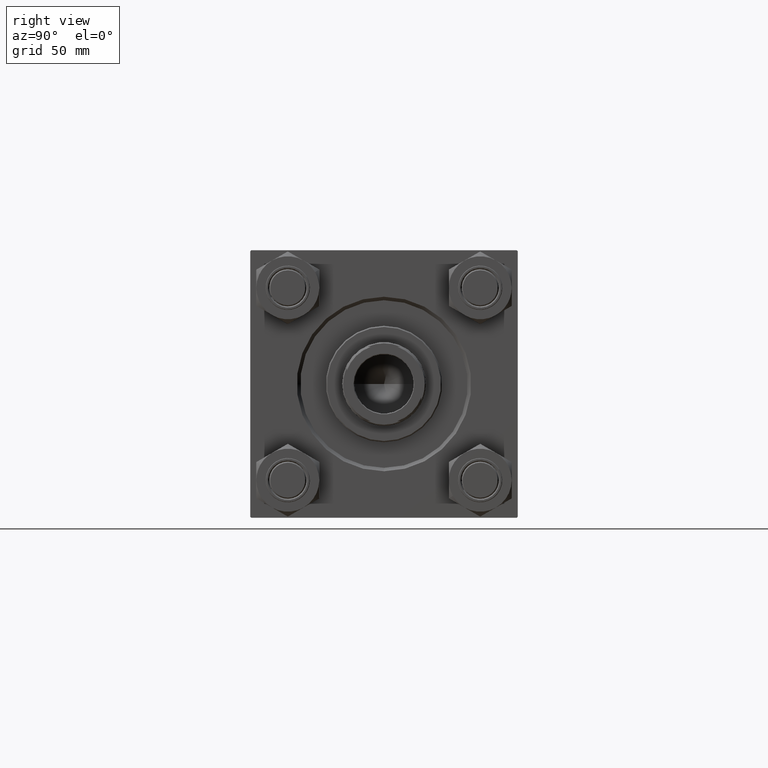
[diagram: clean part render]
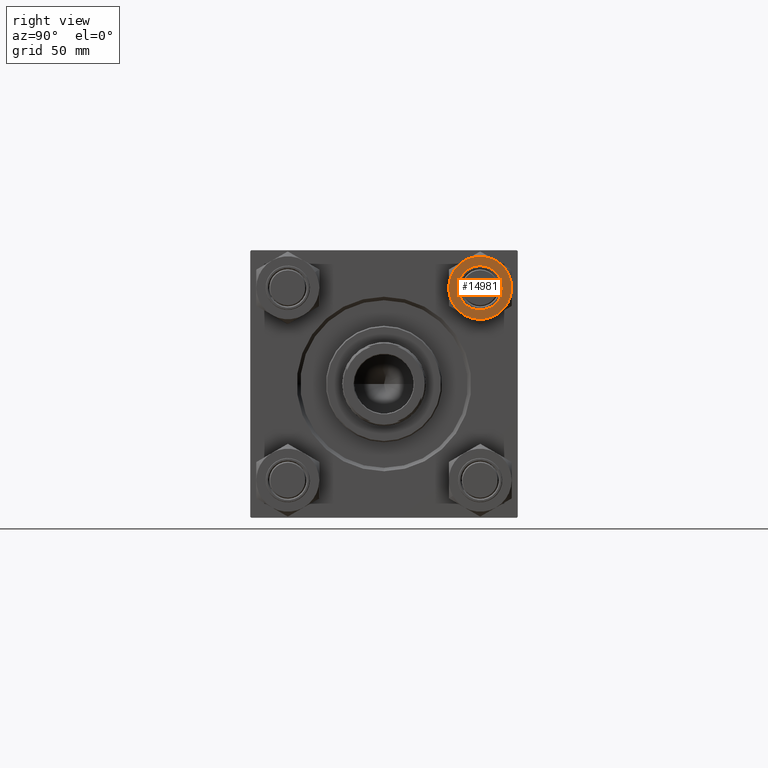
[diagram: same view with one face highlighted and labeled with its STEP entity id]
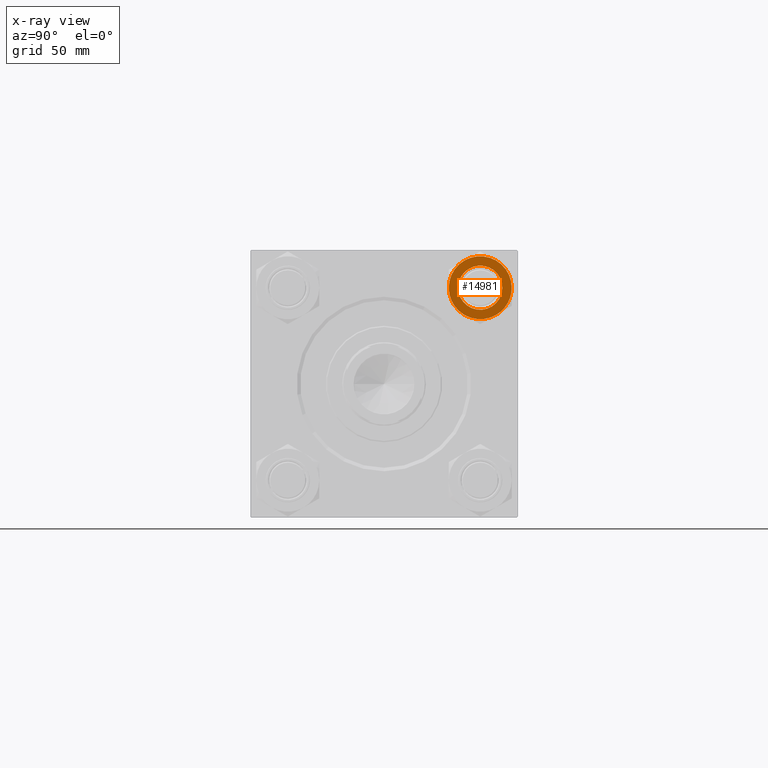
[diagram: x-ray of the same camera — body ghosted, the highlighted face saturated]
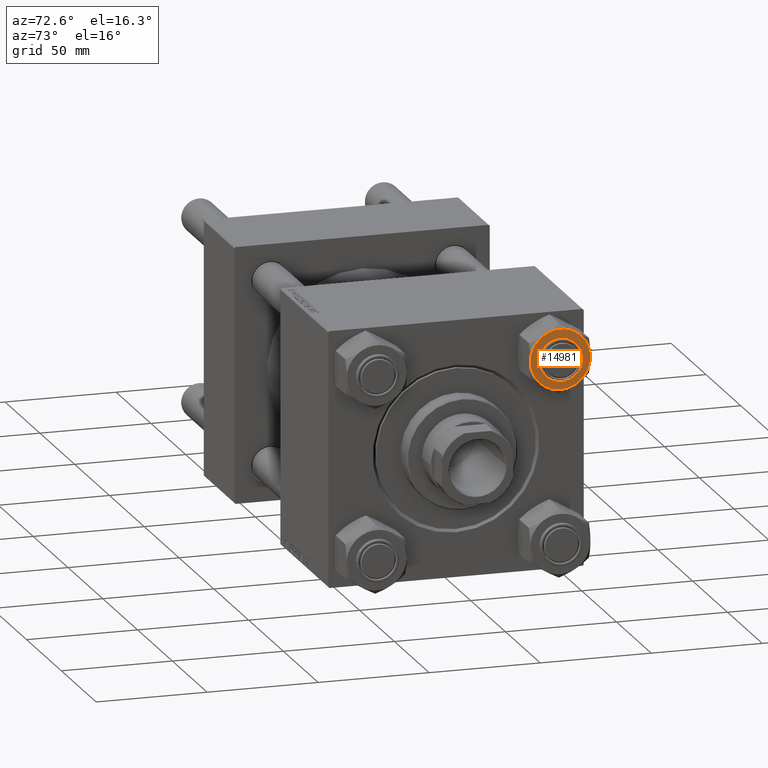
[diagram: same view with one face highlighted and labeled with its STEP entity id]
A machine part, right view. The second image highlights one B-rep face of the part: STEP entity #14981.
The next image is the same camera in x-ray: the body ghosted, the highlighted face saturated — about 0% of this face is hidden behind the body in this view.
A second angle (auxiliary view) of the same face is appended — the face is thin or edge-on in the first view.
In plain terms, the highlighted planar face has unit normal (-1, 0, 0).
Its self-contained STEP definition (entity closure, byte-faithful):
#732 = DIRECTION ( 'NONE',  ( -1.000000000000000000, 0.000000000000000000, 0.000000000000000000 ) ) ;
#771 = VERTEX_POINT ( 'NONE', #5995 ) ;
#1238 = CARTESIAN_POINT ( 'NONE',  ( 0.000000000000000000, 0.000000000000000000, 0.000000000000000000 ) ) ;
#2464 = DIRECTION ( 'NONE',  ( 0.000000000000000000, -0.000000000000000000, -1.000000000000000000 ) ) ;
#2988 = AXIS2_PLACEMENT_3D ( 'NONE', #39169, #7678, #3624 ) ;
#3624 = DIRECTION ( 'NONE',  ( -1.000000000000000000, 0.000000000000000000, 0.000000000000000000 ) ) ;
#3795 = AXIS2_PLACEMENT_3D ( 'NONE', #8138, #19829, #27457 ) ;
#4091 = DIRECTION ( 'NONE',  ( 0.000000000000000000, -0.000000000000000000, -1.000000000000000000 ) ) ;
#4857 = AXIS2_PLACEMENT_3D ( 'NONE', #46231, #31256, #19339 ) ;
#5543 = DIRECTION ( 'NONE',  ( 0.000000000000000000, 0.000000000000000000, 1.000000000000000000 ) ) ;
#5995 = CARTESIAN_POINT ( 'NONE',  ( -9.500000000000000000, 0.000000000000000000, 0.000000000000000000 ) ) ;
#6263 = ORIENTED_EDGE ( 'NONE', *, *, #43164, .F. ) ;
#6464 = EDGE_CURVE ( 'NONE', #44191, #8350, #13794, .T. ) ;
#7123 = DIRECTION ( 'NONE',  ( -1.000000000000000000, 0.000000000000000000, -0.000000000000000000 ) ) ;
#7295 = AXIS2_PLACEMENT_3D ( 'NONE', #21804, #5543, #47963 ) ;
#7463 = CIRCLE ( 'NONE', #46396, 13.52731680711293549 ) ;
#7678 = DIRECTION ( 'NONE',  ( 0.000000000000000000, -0.000000000000000000, -1.000000000000000000 ) ) ;
#8105 = CIRCLE ( 'NONE', #7295, 9.500000000000000000 ) ;
#8138 = CARTESIAN_POINT ( 'NONE',  ( 0.000000000000000000, 0.000000000000000000, 0.000000000000000000 ) ) ;
#8350 = VERTEX_POINT ( 'NONE', #31609 ) ;
#8425 = ORIENTED_EDGE ( 'NONE', *, *, #24257, .F. ) ;
#9885 = CARTESIAN_POINT ( 'NONE',  ( 11.71499999999999808, 6.763658403556471299, 0.000000000000000000 ) ) ;
#9921 = ORIENTED_EDGE ( 'NONE', *, *, #11841, .F. ) ;
#10248 = CIRCLE ( 'NONE', #3795, 9.500000000000000000 ) ;
#11200 = DIRECTION ( 'NONE',  ( 0.000000000000000000, 0.000000000000000000, -1.000000000000000000 ) ) ;
#11500 = ORIENTED_EDGE ( 'NONE', *, *, #32164, .F. ) ;
#11556 = DIRECTION ( 'NONE',  ( 0.000000000000000000, -0.000000000000000000, -1.000000000000000000 ) ) ;
#11793 = CIRCLE ( 'NONE', #14250, 13.52731680711293549 ) ;
#11841 = EDGE_CURVE ( 'NONE', #14864, #46989, #7463, .T. ) ;
#13794 = CIRCLE ( 'NONE', #4857, 13.52731680711293372 ) ;
#14250 = AXIS2_PLACEMENT_3D ( 'NONE', #35893, #34894, #30830 ) ;
#14864 = VERTEX_POINT ( 'NONE', #26196 ) ;
#14981 = ADVANCED_FACE ( 'NONE', ( #41920, #41673 ), #47425, .F. ) ;
#15872 = CARTESIAN_POINT ( 'NONE',  ( 0.000000000000000000, 0.000000000000000000, 0.000000000000000000 ) ) ;
#16725 = VERTEX_POINT ( 'NONE', #21471 ) ;
#17116 = ORIENTED_EDGE ( 'NONE', *, *, #6464, .T. ) ;
#17968 = DIRECTION ( 'NONE',  ( -1.000000000000000000, 0.000000000000000000, 0.000000000000000000 ) ) ;
#18753 = EDGE_CURVE ( 'NONE', #44191, #14864, #35972, .T. ) ;
#19339 = DIRECTION ( 'NONE',  ( 1.000000000000000000, 0.000000000000000000, 0.000000000000000000 ) ) ;
#19507 = EDGE_CURVE ( 'NONE', #45922, #8350, #48961, .T. ) ;
#19542 = VERTEX_POINT ( 'NONE', #23481 ) ;
#19829 = DIRECTION ( 'NONE',  ( 0.000000000000000000, 0.000000000000000000, 1.000000000000000000 ) ) ;
#20035 = DIRECTION ( 'NONE',  ( 0.000000000000000000, -0.000000000000000000, -1.000000000000000000 ) ) ;
#21139 = ORIENTED_EDGE ( 'NONE', *, *, #30673, .F. ) ;
#21471 = CARTESIAN_POINT ( 'NONE',  ( 9.500000000000000000, 1.163414459189985485E-15, 0.000000000000000000 ) ) ;
#21617 = EDGE_LOOP ( 'NONE', ( #29214, #8425, #48343, #11500, #9921, #28831, #17116 ) ) ;
#21804 = CARTESIAN_POINT ( 'NONE',  ( 0.000000000000000000, 0.000000000000000000, 0.000000000000000000 ) ) ;
#22857 = CARTESIAN_POINT ( 'NONE',  ( 11.71500000000000341, -6.763658403556461529, 0.000000000000000000 ) ) ;
#23481 = CARTESIAN_POINT ( 'NONE',  ( -11.71499999999999808, -6.763658403556473964, 0.000000000000000000 ) ) ;
#24257 = EDGE_CURVE ( 'NONE', #19542, #45922, #11793, .T. ) ;
#26196 = CARTESIAN_POINT ( 'NONE',  ( 13.52731680711293727, 0.000000000000000000, 0.000000000000000000 ) ) ;
#27233 = CIRCLE ( 'NONE', #46686, 13.52731680711293549 ) ;
#27457 = DIRECTION ( 'NONE',  ( 1.000000000000000000, 0.000000000000000000, 0.000000000000000000 ) ) ;
#27477 = DIRECTION ( 'NONE',  ( -1.000000000000000000, 0.000000000000000000, 0.000000000000000000 ) ) ;
#28831 = ORIENTED_EDGE ( 'NONE', *, *, #18753, .F. ) ;
#28895 = EDGE_CURVE ( 'NONE', #45009, #19542, #27233, .T. ) ;
#29132 = CARTESIAN_POINT ( 'NONE',  ( 0.000000000000000000, 0.000000000000000000, 0.000000000000000000 ) ) ;
#29214 = ORIENTED_EDGE ( 'NONE', *, *, #19507, .F. ) ;
#30673 = EDGE_CURVE ( 'NONE', #771, #16725, #10248, .T. ) ;
#30830 = DIRECTION ( 'NONE',  ( -1.000000000000000000, 0.000000000000000000, 0.000000000000000000 ) ) ;
#31256 = DIRECTION ( 'NONE',  ( 0.000000000000000000, 0.000000000000000000, 1.000000000000000000 ) ) ;
#31609 = CARTESIAN_POINT ( 'NONE',  ( -4.506943796211480446E-15, 13.52731680711293905, 0.000000000000000000 ) ) ;
#32164 = EDGE_CURVE ( 'NONE', #46989, #45009, #37867, .T. ) ;
#33538 = AXIS2_PLACEMENT_3D ( 'NONE', #49791, #11200, #7123 ) ;
#34894 = DIRECTION ( 'NONE',  ( 0.000000000000000000, -0.000000000000000000, -1.000000000000000000 ) ) ;
#35893 = CARTESIAN_POINT ( 'NONE',  ( 0.000000000000000000, 0.000000000000000000, 0.000000000000000000 ) ) ;
#35972 = CIRCLE ( 'NONE', #48923, 13.52731680711293549 ) ;
#37867 = CIRCLE ( 'NONE', #2988, 13.52731680711293549 ) ;
#38881 = CARTESIAN_POINT ( 'NONE',  ( 0.000000000000000000, 0.000000000000000000, 0.000000000000000000 ) ) ;
#39169 = CARTESIAN_POINT ( 'NONE',  ( 0.000000000000000000, 0.000000000000000000, 0.000000000000000000 ) ) ;
#41673 = FACE_OUTER_BOUND ( 'NONE', #21617, .T. ) ;
#41920 = FACE_BOUND ( 'NONE', #42153, .T. ) ;
#42153 = EDGE_LOOP ( 'NONE', ( #21139, #6263 ) ) ;
#43164 = EDGE_CURVE ( 'NONE', #16725, #771, #8105, .T. ) ;
#43327 = AXIS2_PLACEMENT_3D ( 'NONE', #15872, #11556, #49620 ) ;
#44191 = VERTEX_POINT ( 'NONE', #9885 ) ;
#44201 = CARTESIAN_POINT ( 'NONE',  ( -11.71500000000000341, 6.763658403556464194, 0.000000000000000000 ) ) ;
#45009 = VERTEX_POINT ( 'NONE', #48723 ) ;
#45922 = VERTEX_POINT ( 'NONE', #44201 ) ;
#46231 = CARTESIAN_POINT ( 'NONE',  ( 0.000000000000000000, 0.000000000000000000, 0.000000000000000000 ) ) ;
#46396 = AXIS2_PLACEMENT_3D ( 'NONE', #29132, #2464, #17968 ) ;
#46686 = AXIS2_PLACEMENT_3D ( 'NONE', #1238, #20035, #732 ) ;
#46989 = VERTEX_POINT ( 'NONE', #22857 ) ;
#47425 = PLANE ( 'NONE',  #33538 ) ;
#47963 = DIRECTION ( 'NONE',  ( 1.000000000000000000, 0.000000000000000000, 0.000000000000000000 ) ) ;
#48343 = ORIENTED_EDGE ( 'NONE', *, *, #28895, .F. ) ;
#48723 = CARTESIAN_POINT ( 'NONE',  ( 7.511572993685796537E-15, -13.52731680711293372, 0.000000000000000000 ) ) ;
#48923 = AXIS2_PLACEMENT_3D ( 'NONE', #38881, #4091, #27477 ) ;
#48961 = CIRCLE ( 'NONE', #43327, 13.52731680711293549 ) ;
#49620 = DIRECTION ( 'NONE',  ( -1.000000000000000000, 0.000000000000000000, 0.000000000000000000 ) ) ;
#49791 = CARTESIAN_POINT ( 'NONE',  ( 0.000000000000000000, 0.000000000000000000, 0.000000000000000000 ) ) ;